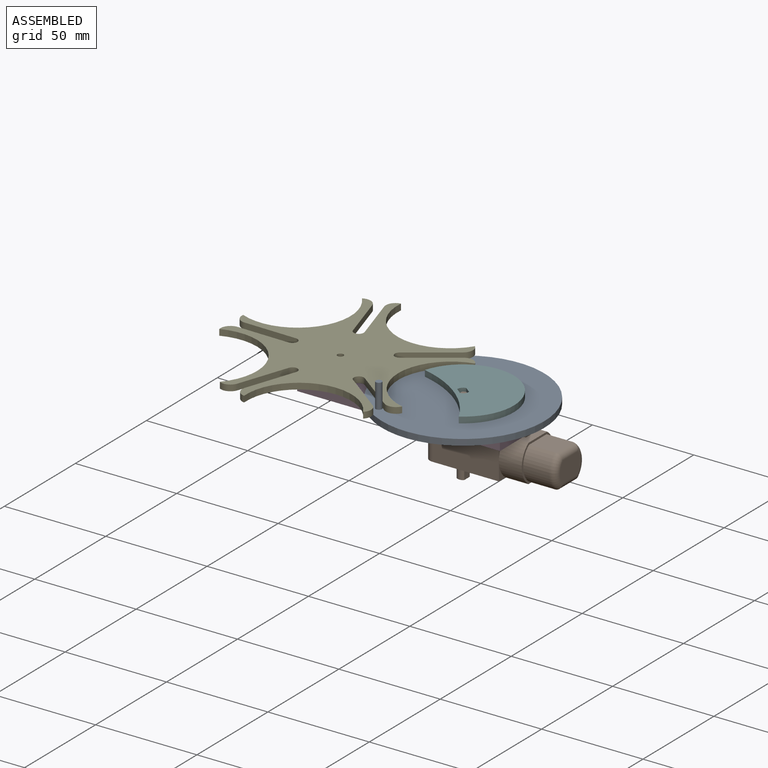
[diagram: assembled view]
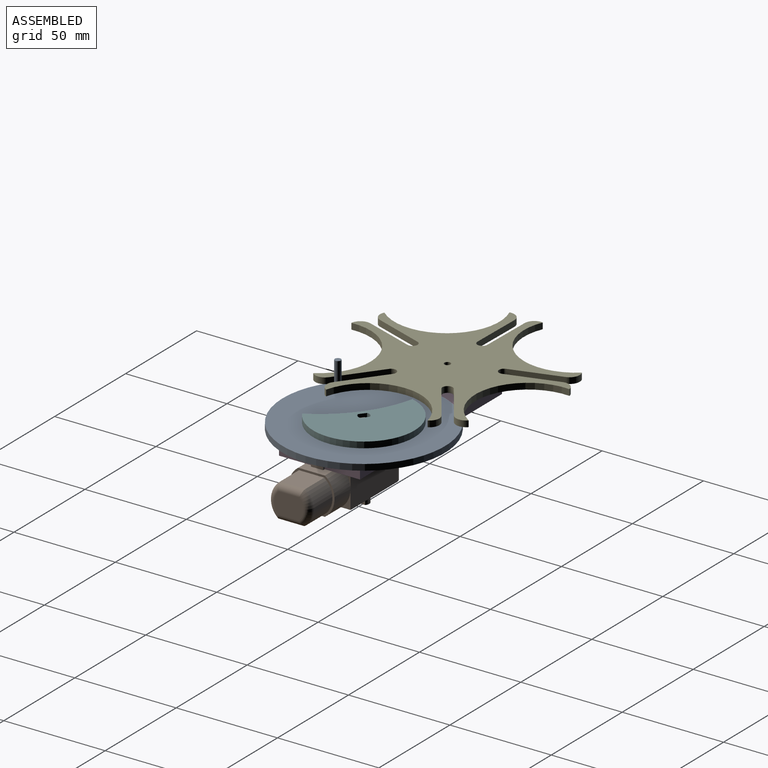
[diagram: assembled view, second angle]
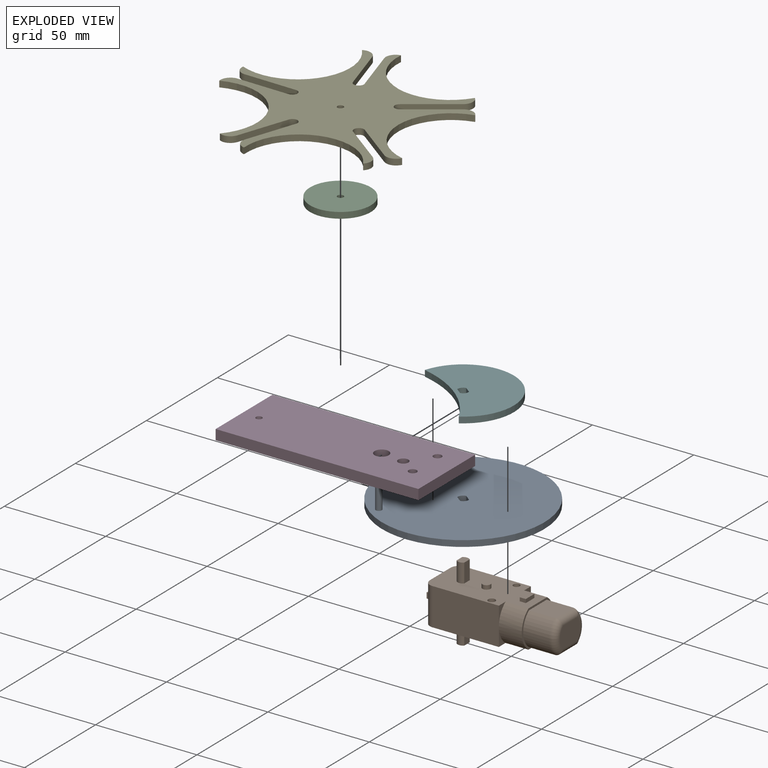
[diagram: exploded view]
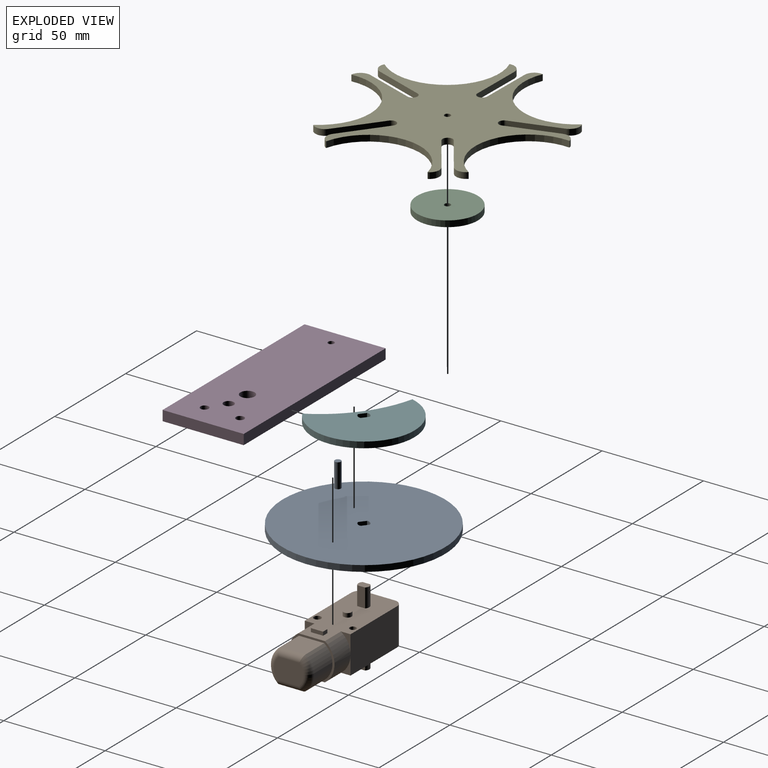
[diagram: exploded view, second angle]
ASSEMBLY  parts=6 mates=5
PART A: 9 faces, bbox 80x15x80 mm
  f0: cylinder r=2.7mm len=3.8mm, axis (0,1,0), area 12.6mm2, adj f1,f3,f5,f6
  f1: plane 3.84x3mm, normal (1,0,0), area 11.5mm2, adj f0,f2,f5,f6
  f2: cylinder r=2.7mm len=3.8mm, axis (0,1,0), area 12.6mm2, adj f1,f3,f5,f6
  f3: plane 3.84x3mm, normal (-1,0,0), area 11.5mm2, adj f0,f2,f5,f6
  f4: cylinder r=40mm len=80mm, axis (0,1,0), area 754mm2, adj f5,f6
  f5: plane 80x80mm, normal (0,-1,0), area 5000.8mm2, adj f0,f1,f2,f3,f4,f7
  f6: plane 80x80mm, normal (0,1,0), area 5007.9mm2, adj f0,f1,f2,f3,f4
  f7: cylinder r=1.5mm len=12mm, axis (0,1,0), area 113.1mm2, adj f5,f8
  f8: plane 3x3mm, normal (0,-1,0), area 7.1mm2, adj f7
PART B: 53 faces, bbox 69.1x22.6x37 mm
  f0: plane 22.6x18.4mm, normal (1,0,0), area 66.1mm2, adj f8,f9,f17,f18,f19,f20,f21,f22
  f1: plane 9.2x4.74mm, normal (1,0,0), area 13mm2, adj f5,f8,f17
  f2: plane 9.2x4.74mm, normal (1,0,0), area 13mm2, adj f5,f9,f17
  f3: plane 9.2x4.74mm, normal (1,0,0), area 13mm2, adj f7,f9,f18
  f4: plane 18.4x14.6mm, normal (-1,0,0), area 255.1mm2, adj f8,f9,f10,f11,f12,f14,f16,f40
  f5: plane 32.8x18.4mm, normal (0,-1,0), area 603.5mm2, adj f1,f2,f8,f9,f10
  f6: plane 9.2x4.74mm, normal (1,0,0), area 13mm2, adj f7,f8,f18
  f7: plane 32.8x18.4mm, normal (0,1,0), area 603.5mm2, adj f3,f6,f8,f9,f11
  f8: plane 48.1x22.6mm, normal (0,0,1), area 906.1mm2, adj f0,f1,f4,f5,f6,f7,f10,f11
  f9: plane 48.1x22.6mm, normal (0,0,-1), area 918.6mm2, adj f0,f2,f3,f4,f5,f7,f10,f11
  f10: cylinder r=4mm len=18.4mm, axis (0,0,1), area 115.6mm2, adj f4,f5,f8,f9
  f11: cylinder r=4mm len=18.4mm, axis (0,0,-1), area 115.6mm2, adj f4,f7,f8,f9
  f12: plane 5x2.7mm, normal (0,1,0), area 13.5mm2, adj f4,f13,f16,f40
  f13: plane 5x2.7mm, normal (-1,0,0), area 13.5mm2, adj f12,f14,f16,f40
  f14: plane 5x2.7mm, normal (0,-1,0), area 13.5mm2, adj f4,f13,f16,f40
  f15: cylinder r=1.25mm len=2.7mm, axis (0,0,-1), area 21.2mm2, adj f16,f40
  f16: plane 5x5mm, normal (0,0,1), area 20.1mm2, adj f4,f12,f13,f14,f15
  f17: cylinder r=11.3mm len=18.4mm, axis (-1,0,0), area 242.9mm2, adj f0,f1,f2,f8,f9
  f18: cylinder r=11.3mm len=18.4mm, axis (-1,0,0), area 242.9mm2, adj f0,f3,f6,f8,f9
  f19: plane 13x12.47mm, normal (0,0,1), area 162.1mm2, adj f0,f20,f22,f34
  f20: cylinder r=10.3mm len=16.4mm, axis (-1,0,0), area 246.6mm2, adj f0,f19,f21,f36
  f21: plane 13x12.47mm, normal (0,0,-1), area 162.1mm2, adj f0,f20,f22,f37
  f22: cylinder r=10.3mm len=16.4mm, axis (-1,0,0), area 246.6mm2, adj f0,f19,f21,f35
  f23: plane 14.6x10.4mm, normal (1,0,0), area 137.8mm2, adj f34,f35,f36,f37
  f24: plane 5.4x3.75mm, normal (0,0,-1), area 18.5mm2, adj f25,f26,f27,f28
  f25: cylinder r=2.7mm len=9.3mm, axis (0,0,-1), area 38.6mm2, adj f9,f24,f26,f28
  f26: plane 9.3x3.89mm, normal (-1,0,0), area 36.1mm2, adj f9,f24,f25,f27
  f27: cylinder r=2.7mm len=9.3mm, axis (0,0,-1), area 38.6mm2, adj f9,f24,f26,f28
  f28: plane 9.3x3.89mm, normal (1,0,0), area 36.1mm2, adj f9,f24,f25,f27
  f29: plane 9.3x3.89mm, normal (1,0,0), area 36.1mm2, adj f8,f30,f32,f33
  f30: cylinder r=2.7mm len=9.3mm, axis (0,0,-1), area 38.6mm2, adj f8,f29,f31,f33
  f31: plane 9.3x3.89mm, normal (-1,0,0), area 36.1mm2, adj f8,f30,f32,f33
  f32: cylinder r=2.7mm len=9.3mm, axis (0,0,-1), area 38.6mm2, adj f8,f29,f31,f33
  f33: plane 5.4x3.75mm, normal (0,0,1), area 18.5mm2, adj f29,f30,f31,f32
  f34: cylinder r=3mm len=12.47mm, axis (0,1,0), area 55.1mm2, adj f19,f23,f35,f36
  f35: torus R=7.3mm, axis (1,0,0), area 76.6mm2, adj f22,f23,f34,f37
  f36: torus R=7.3mm, axis (1,0,0), area 76.6mm2, adj f20,f23,f34,f37
  f37: cylinder r=3mm len=12.47mm, axis (0,-1,0), area 55.1mm2, adj f21,f23,f35,f36
  f38: cylinder r=2mm len=4mm, axis (0,0,-1), area 25.1mm2, adj f8,f39
  f39: plane 4x4mm, normal (0,0,1), area 12.6mm2, adj f38
  f40: plane 5x5mm, normal (0,0,-1), area 20.1mm2, adj f4,f12,f13,f14,f15
  f41: cylinder r=1.78mm len=18.4mm, axis (0,0,1), area 205.7mm2, adj f8,f9
  f42: cylinder r=1.6mm len=18.4mm, axis (0,0,1), area 185mm2, adj f8,f9
  f43: plane 6x3mm, normal (0,0,-1), area 18mm2, adj f44,f45,f46,f47
  f44: plane 6x1.8mm, normal (1,0,0), area 10.8mm2, adj f9,f43,f45,f47
  f45: plane 3x1.8mm, normal (0,-1,0), area 5.4mm2, adj f9,f43,f44,f46
  f46: plane 6x1.8mm, normal (-1,0,0), area 10.8mm2, adj f9,f43,f45,f47
  f47: plane 3x1.8mm, normal (0,1,0), area 5.4mm2, adj f9,f43,f44,f46
  f48: plane 3x1.8mm, normal (0,1,0), area 5.4mm2, adj f8,f49,f51,f52
  f49: plane 6x1.8mm, normal (-1,0,0), area 10.8mm2, adj f8,f48,f50,f52
  f50: plane 3x1.8mm, normal (0,-1,0), area 5.4mm2, adj f8,f49,f51,f52
  f51: plane 6x1.8mm, normal (1,0,0), area 10.8mm2, adj f8,f48,f50,f52
  f52: plane 6x3mm, normal (0,0,1), area 18mm2, adj f48,f49,f50,f51
PART C: 4 faces, bbox 30x3x30 mm
  f0: cylinder r=1.5mm len=3mm, axis (0,1,0), area 28.3mm2, adj f2,f3
  f1: cylinder r=15mm len=30mm, axis (0,1,0), area 282.7mm2, adj f2,f3
  f2: plane 30x30mm, normal (0,-1,0), area 699.8mm2, adj f0,f1
  f3: plane 30x30mm, normal (0,1,0), area 699.8mm2, adj f0,f1
PART D: 11 faces, bbox 100x5x40 mm
  f0: plane 100x5mm, normal (0,0,1), area 500mm2, adj f1,f8,f9,f10
  f1: plane 40x5mm, normal (-1,0,0), area 200mm2, adj f0,f2,f9,f10
  f2: plane 100x5mm, normal (0,0,-1), area 500mm2, adj f1,f8,f9,f10
  f3: cylinder r=1.5mm len=5mm, axis (0,1,0), area 47.1mm2, adj f9,f10
  f4: cylinder r=3.5mm len=7mm, axis (0,1,0), area 110mm2, adj f9,f10
  f5: cylinder r=2.5mm len=5mm, axis (0,1,0), area 78.5mm2, adj f9,f10
  f6: cylinder r=2mm len=5mm, axis (0,1,0), area 62.8mm2, adj f9,f10
  f7: cylinder r=2mm len=5mm, axis (0,1,0), area 62.8mm2, adj f9,f10
  f8: plane 40x5mm, normal (1,0,0), area 200mm2, adj f0,f2,f9,f10
  f9: plane 100x40mm, normal (0,-1,0), area 3909.7mm2, adj f0,f1,f2,f3,f4,f5,f6,f7
  f10: plane 100x40mm, normal (0,1,0), area 3909.7mm2, adj f0,f1,f2,f3,f4,f5,f6,f7
PART E: 43 faces, bbox 108.5x3x103.4 mm
  f0: cylinder r=26mm len=50.53mm, axis (0,1,0), area 207.8mm2, adj f1,f40,f41,f42
  f1: cylinder r=55mm len=3mm, axis (0,1,0), area 0.6mm2, adj f0,f2,f41,f42
  f2: cylinder r=5mm len=7.38mm, axis (0,1,0), area 25.8mm2, adj f1,f3,f41,f42
  f3: plane 20.58x14.95mm, normal (0.81,0,0.59), area 76.3mm2, adj f2,f4,f41,f42
  f4: cylinder r=2.5mm len=4.52mm, axis (0,1,0), area 23.6mm2, adj f3,f5,f41,f42
  f5: plane 20.76x15.09mm, normal (-0.81,0,-0.59), area 77mm2, adj f4,f6,f41,f42
  f6: cylinder r=4.8mm len=7.24mm, axis (0,1,0), area 24.7mm2, adj f5,f7,f41,f42
  f7: cylinder r=55mm len=3mm, axis (0,1,0), area 0.3mm2, adj f6,f8,f41,f42
  f8: cylinder r=26mm len=48.08mm, axis (0,1,0), area 207.8mm2, adj f7,f9,f41,f42
  f9: cylinder r=55mm len=3mm, axis (0,1,0), area 0.6mm2, adj f8,f10,f41,f42
  f10: cylinder r=5mm len=6.48mm, axis (0,1,0), area 25.8mm2, adj f9,f11,f41,f42
  f11: plane 24.19x7.86mm, normal (-0.31,0,0.95), area 76.3mm2, adj f10,f12,f41,f42
  f12: cylinder r=2.5mm len=4.88mm, axis (0,1,0), area 23.6mm2, adj f11,f13,f41,f42
  f13: plane 24.41x7.93mm, normal (0.31,0,-0.95), area 77mm2, adj f12,f14,f41,f42
  f14: cylinder r=4.8mm len=6.7mm, axis (0,1,0), area 24.7mm2, adj f13,f15,f41,f42
  f15: cylinder r=55mm len=3mm, axis (0,1,0), area 0.3mm2, adj f14,f16,f41,f42
  f16: cylinder r=26mm len=42.76mm, axis (0,1,0), area 207.8mm2, adj f15,f17,f41,f42
  f17: cylinder r=55mm len=3mm, axis (0,1,0), area 0.6mm2, adj f16,f18,f41,f42
  f18: cylinder r=5mm len=5.75mm, axis (0,1,0), area 25.8mm2, adj f17,f19,f41,f42
  f19: plane 25.43x3mm, normal (-1,0,0), area 76.3mm2, adj f18,f20,f41,f42
  f20: cylinder r=2.5mm len=5mm, axis (0,1,0), area 23.6mm2, adj f19,f21,f41,f42
  f21: plane 25.67x3mm, normal (1,0,0), area 77mm2, adj f20,f22,f41,f42
  f22: cylinder r=4.8mm len=5.5mm, axis (0,1,0), area 24.7mm2, adj f21,f23,f41,f42
  f23: cylinder r=55mm len=3mm, axis (0,1,0), area 0.3mm2, adj f22,f24,f41,f42
  f24: cylinder r=26mm len=42.89mm, axis (0,1,0), area 207.8mm2, adj f23,f25,f41,f42
  f25: cylinder r=55mm len=3mm, axis (0,1,0), area 0.6mm2, adj f24,f26,f41,f42
  f26: cylinder r=5mm len=7mm, axis (0,1,0), area 25.8mm2, adj f25,f27,f41,f42
  f27: plane 24.19x7.86mm, normal (-0.31,0,-0.95), area 76.3mm2, adj f26,f28,f41,f42
  f28: cylinder r=2.5mm len=4.88mm, axis (0,1,0), area 23.6mm2, adj f27,f29,f41,f42
  f29: plane 24.41x7.93mm, normal (0.31,0,0.95), area 77mm2, adj f28,f30,f41,f42
  f30: cylinder r=4.8mm len=6.22mm, axis (0,1,0), area 24.7mm2, adj f29,f31,f41,f42
  f31: cylinder r=55mm len=3mm, axis (0,1,0), area 0.3mm2, adj f30,f32,f41,f42
  f32: cylinder r=26mm len=48.17mm, axis (0,1,0), area 207.8mm2, adj f31,f33,f41,f42
  f33: cylinder r=55mm len=3mm, axis (0,1,0), area 0.6mm2, adj f32,f34,f41,f42
  f34: cylinder r=5mm len=7.56mm, axis (0,1,0), area 25.8mm2, adj f33,f35,f41,f42
  f35: plane 20.58x14.95mm, normal (0.81,0,-0.59), area 76.3mm2, adj f34,f36,f41,f42
  f36: cylinder r=2.5mm len=4.52mm, axis (0,1,0), area 23.6mm2, adj f35,f37,f41,f42
  f37: plane 20.76x15.09mm, normal (-0.81,0,0.59), area 77mm2, adj f36,f38,f41,f42
  f38: cylinder r=4.8mm len=7.07mm, axis (0,1,0), area 24.7mm2, adj f37,f40,f41,f42
  f39: cylinder r=1.5mm len=3mm, axis (0,1,0), area 28.3mm2, adj f41,f42
  f40: cylinder r=55mm len=3mm, axis (0,1,0), area 0.3mm2, adj f0,f38,f41,f42
  f41: plane 108.54x103.4mm, normal (0,-1,0), area 3832.2mm2, adj f0,f1,f2,f3,f4,f5,f6,f7
  f42: plane 108.54x103.4mm, normal (0,1,0), area 3832.2mm2, adj f0,f1,f2,f3,f4,f5,f6,f7
PART F: 8 faces, bbox 34x3x50 mm
  f0: cylinder r=56.04mm len=46.62mm, axis (0,1,0), area 144.2mm2, adj f5,f6,f7
  f1: cylinder r=2.7mm len=3.8mm, axis (0,1,0), area 12.6mm2, adj f2,f4,f6,f7
  f2: plane 3.84x3mm, normal (-1,0,0), area 11.5mm2, adj f1,f3,f6,f7
  f3: cylinder r=2.7mm len=3.8mm, axis (0,1,0), area 12.6mm2, adj f2,f4,f6,f7
  f4: plane 3.84x3mm, normal (1,0,0), area 11.5mm2, adj f1,f3,f6,f7
  f5: cylinder r=25mm len=50mm, axis (0,1,0), area 291.1mm2, adj f0,f6,f7
  f6: plane 50x34.03mm, normal (0,-1,0), area 1245.4mm2, adj f0,f1,f2,f3,f4,f5
  f7: plane 50x34.03mm, normal (0,1,0), area 1245.4mm2, adj f0,f1,f2,f3,f4,f5
PLACE A rot(axis=(-0.82,-0.4,0.4),101.1deg) t=(-19.46,-6.03,6.2)mm
PLACE B t=(-30.76,-6.03,-8)mm fixed
PLACE C rot(axis=(1,0,0),90deg) t=(-79.46,-6.78,9.2)mm
PLACE D rot(axis=(-1,0,0),90deg) t=(-42.67,4.47,1.2)mm
PLACE E rot(axis=(0.97,-0.16,-0.16),91.5deg) t=(-79.46,-6.78,12.2)mm
PLACE F rot(axis=(0.82,0.4,0.4),101.1deg) t=(-19.46,-6.03,12.2)mm
MATE revolute E.f40 <-> C.f1  axis (0,0,-1) through (-79.46,-6.78,9.2)mm
MATE revolute C.f1 <-> D.f3  axis (0,0,-1) through (-79.46,-6.78,6.2)mm
MATE revolute A.f4 <-> D.f4  axis (0,0,-1) through (-19.46,-6.03,6.2)mm
MATE fastened F.f5 <-> A.f4  axis (0,0,-1) through (-19.46,-6.03,9.2)mm
MATE fastened D.f4 <-> B.f27  axis (0,0,-1) through (-19.46,-6.03,1.2)mm
